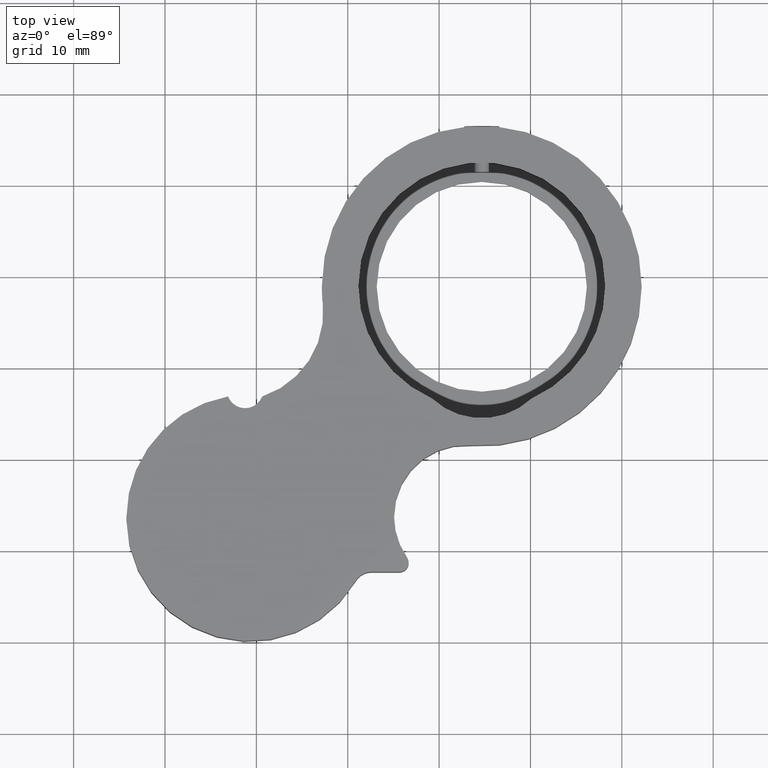
[diagram: clean part render]
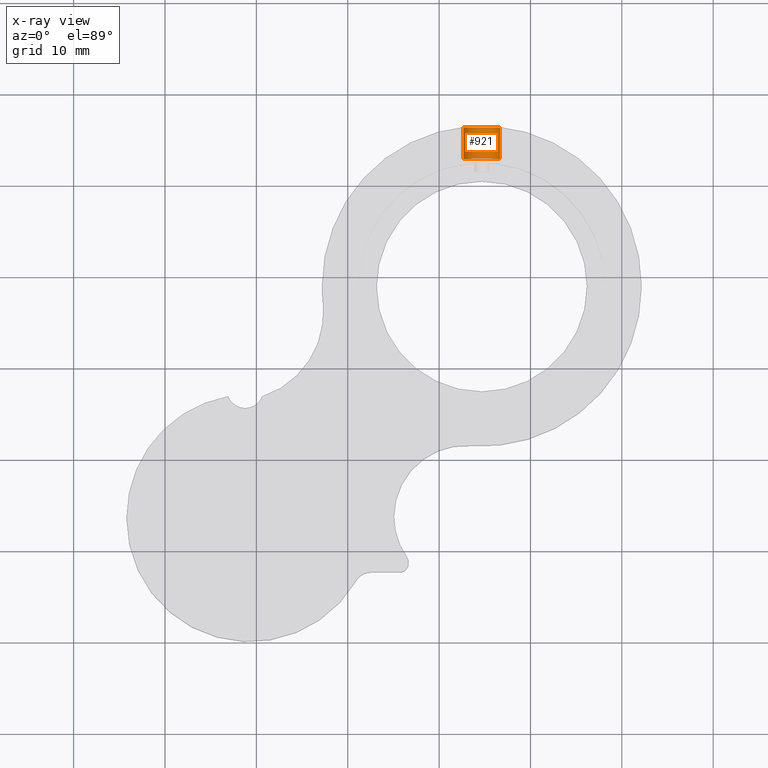
[diagram: x-ray — body ghosted, one internal face saturated and labeled with its STEP entity id]
A machine part, top view, then the same camera in x-ray: the body is ghosted and one INTERNAL B-rep face — a face not visible from any outside direction — is saturated and labeled: STEP entity #921.
In plain terms, the highlighted cylindrical surface (edge-blend (fillet) strip) has radius 2 mm, axis along (0, -1, 0).
Its self-contained STEP definition (entity closure, byte-faithful):
#9 = EDGE_LOOP ( 'NONE', ( #1451, #577, #1022, #1520 ) ) ;
#46 = VECTOR ( 'NONE', #1289, 1000.000000000000000 ) ;
#55 = VERTEX_POINT ( 'NONE', #980 ) ;
#67 = CARTESIAN_POINT ( 'NONE',  ( 12.66858832387115700, 32.86969456225322300, 57.00000000000000000 ) ) ;
#92 = DIRECTION ( 'NONE',  ( 1.000000000000000000, 0.0000000000000000000, 0.0000000000000000000 ) ) ;
#110 = DIRECTION ( 'NONE',  ( -6.122958999999999600E-016, 1.000000000000000000, -0.0000000000000000000 ) ) ;
#174 = AXIS2_PLACEMENT_3D ( 'NONE', #939, #1045, #1502 ) ;
#195 = CARTESIAN_POINT ( 'NONE',  ( 16.66858832310608600, 32.86969456225322300, 57.00000000000000000 ) ) ;
#272 = LINE ( 'NONE', #817, #46 ) ;
#300 = CIRCLE ( 'NONE', #174, 1.999999999999996700 ) ;
#304 = CARTESIAN_POINT ( 'NONE',  ( 16.66858832348862100, 34.59469456225321700, 57.00000000000000000 ) ) ;
#321 = DIRECTION ( 'NONE',  ( 6.122958999999999600E-016, -1.000000000000000000, 0.0000000000000000000 ) ) ;
#342 = VERTEX_POINT ( 'NONE', #195 ) ;
#387 = AXIS2_PLACEMENT_3D ( 'NONE', #808, #110, #934 ) ;
#518 = VERTEX_POINT ( 'NONE', #67 ) ;
#568 = CARTESIAN_POINT ( 'NONE',  ( 16.66858832342214200, 36.31969456225321800, 57.00000000000000000 ) ) ;
#577 = ORIENTED_EDGE ( 'NONE', *, *, #767, .T. ) ;
#746 = FACE_OUTER_BOUND ( 'NONE', #9, .T. ) ;
#767 = EDGE_CURVE ( 'NONE', #55, #518, #272, .T. ) ;
#808 = CARTESIAN_POINT ( 'NONE',  ( 14.66858832348862100, 32.86969456225322300, 57.00000000000000000 ) ) ;
#817 = CARTESIAN_POINT ( 'NONE',  ( 12.66858832348862400, 34.59469456225321700, 57.00000000000000000 ) ) ;
#836 = CYLINDRICAL_SURFACE ( 'NONE', #908, 1.999999999999998200 ) ;
#859 = LINE ( 'NONE', #304, #993 ) ;
#903 = CIRCLE ( 'NONE', #387, 1.999999999999998200 ) ;
#908 = AXIS2_PLACEMENT_3D ( 'NONE', #926, #1399, #92 ) ;
#921 = ADVANCED_FACE ( 'NONE', ( #746 ), #836, .T. ) ;
#926 = CARTESIAN_POINT ( 'NONE',  ( 14.66858832348862100, 34.59469456225321700, 57.00000000000000000 ) ) ;
#934 = DIRECTION ( 'NONE',  ( 1.000000000000000000, 0.0000000000000000000, 0.0000000000000000000 ) ) ;
#939 = CARTESIAN_POINT ( 'NONE',  ( 14.66858832348861900, 36.31969456225321800, 57.00000000000000000 ) ) ;
#963 = EDGE_CURVE ( 'NONE', #518, #342, #903, .T. ) ;
#975 = VERTEX_POINT ( 'NONE', #568 ) ;
#980 = CARTESIAN_POINT ( 'NONE',  ( 12.66858832355509700, 36.31969456225321800, 57.00000000000000000 ) ) ;
#993 = VECTOR ( 'NONE', #321, 1000.000000000000000 ) ;
#1022 = ORIENTED_EDGE ( 'NONE', *, *, #963, .T. ) ;
#1045 = DIRECTION ( 'NONE',  ( 6.122958999999999600E-016, -1.000000000000000000, 0.0000000000000000000 ) ) ;
#1266 = EDGE_CURVE ( 'NONE', #975, #342, #859, .T. ) ;
#1289 = DIRECTION ( 'NONE',  ( 6.122958999999999600E-016, -1.000000000000000000, 0.0000000000000000000 ) ) ;
#1376 = EDGE_CURVE ( 'NONE', #975, #55, #300, .T. ) ;
#1399 = DIRECTION ( 'NONE',  ( 6.122958999999999600E-016, -1.000000000000000000, 0.0000000000000000000 ) ) ;
#1451 = ORIENTED_EDGE ( 'NONE', *, *, #1376, .T. ) ;
#1502 = DIRECTION ( 'NONE',  ( 1.000000000000000000, 0.0000000000000000000, 0.0000000000000000000 ) ) ;
#1520 = ORIENTED_EDGE ( 'NONE', *, *, #1266, .F. ) ;